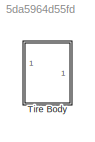
MODEL slx_5da5964d55fd
KIND library
CONFIG SolverName = VariableStepAuto
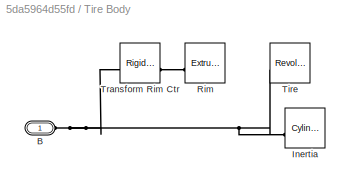
BLOCK [SubSystem] Tire Body
BLOCK [PMIOPort] Tire Body/B
  Side = Left
BLOCK [Reference] Tire Body/Inertia  REF=sm_lib/Body Elements/Cylindrical Solid
  SourceBlock = sm_lib/Body Elements/Cylindrical Solid
  SourceType = Cylindrical Solid
BLOCK [Reference] Tire Body/Rim  REF=sm_lib/Body Elements/Extruded Solid
  SourceBlock = sm_lib/Body Elements/Extruded Solid
  SourceType = Extruded Solid
BLOCK [Reference] Tire Body/Tire  REF=sm_lib/Body Elements/Revolved Solid
  SourceBlock = sm_lib/Body Elements/Revolved Solid
  SourceType = Revolved Solid
BLOCK [Reference] Tire Body/Transform Rim Ctr  REF=sm_lib/Frames and
Transforms/Rigid
Transform
  SourceBlock = sm_lib/Frames and\nTransforms/Rigid\nTransform
  SourceType = Rigid\nTransform
PNET net1: Tire Body/B:RConn1 -- Tire Body/Inertia:RConn1 -- Tire Body/Tire:RConn1 -- Tire Body/Transform Rim Ctr:LConn1
PLINE Tire Body/Rim:RConn1 -- Tire Body/Transform Rim Ctr:RConn1
note: PNET lines group multi-terminal physical nets as a canonical sorted terminal list (undirected conserving connections); 2-terminal nets keep the pairwise PLINE form
